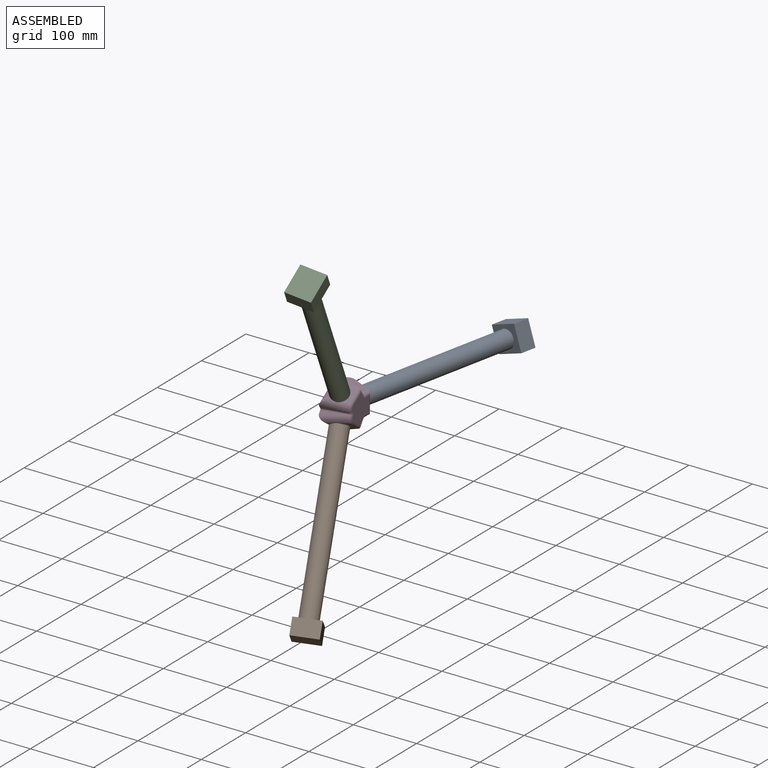
[diagram: assembled view]
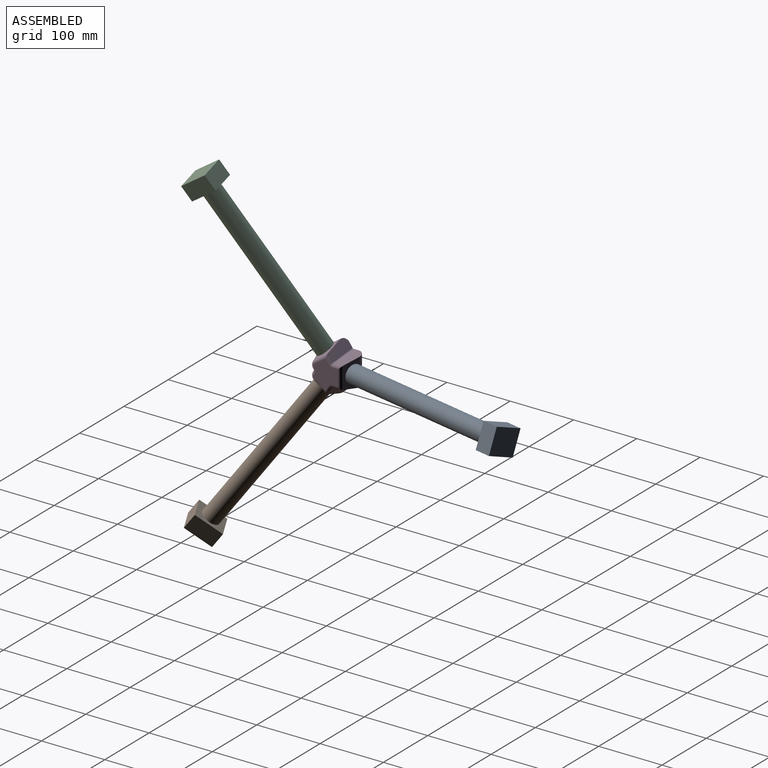
[diagram: assembled view, second angle]
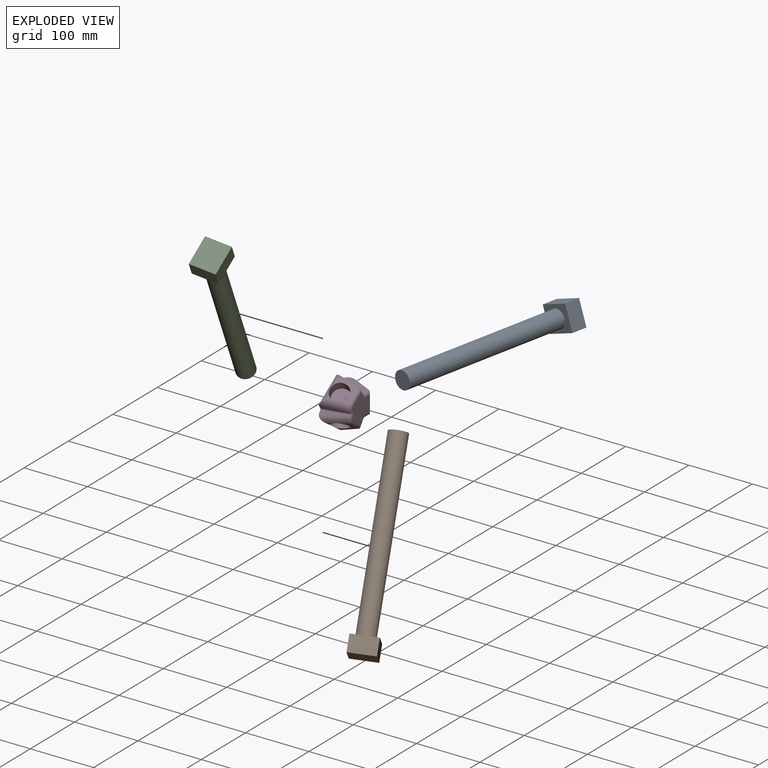
[diagram: exploded view]
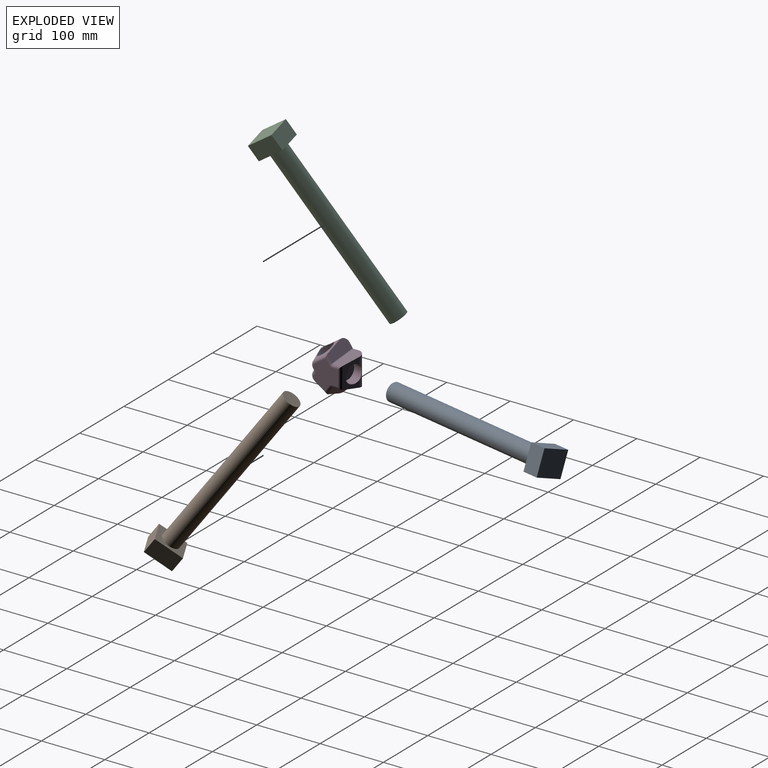
[diagram: exploded view, second angle]
ASSEMBLY  parts=4 mates=3
PART A: 8 faces, bbox 40x45x300 mm
  f0: cylinder r=14mm len=275mm, axis (0,0,-1), area 24190.3mm2, adj f1,f6
  f1: plane 28x28mm, normal (0,0,-1), area 615.8mm2, adj f0
  f2: plane 44.95x25mm, normal (1,0,0), area 1123.8mm2, adj f3,f5,f6,f7
  f3: plane 39.97x25mm, normal (0,1,0), area 999.2mm2, adj f2,f4,f6,f7
  f4: plane 44.95x25mm, normal (-1,0,0), area 1123.8mm2, adj f3,f5,f6,f7
  f5: plane 39.97x25mm, normal (0,-1,0), area 999.2mm2, adj f2,f4,f6,f7
  f6: plane 44.95x39.97mm, normal (0,0,-1), area 1180.9mm2, adj f0,f2,f3,f4,f5
  f7: plane 44.95x39.97mm, normal (0,0,1), area 1796.6mm2, adj f2,f3,f4,f5
PART B: same geometry as A
PART C: same geometry as A
PART D: 70 faces, bbox 79.5x43x70.3 mm
  f0: plane 1.05x0.76mm, normal (0.79,0.27,-0.54), area 0.5mm2, adj f34,f36,f66
  f1: plane 1.05x0.76mm, normal (-0.79,0.27,-0.54), area 0.5mm2, adj f38,f41,f64
  f2: plane 38.75x20.7mm, normal (0.56,0.17,0.81), area 645.5mm2, adj f14,f24,f26,f32,f57
  f3: plane 38.75x21.52mm, normal (-0.98,0.17,0), area 645.5mm2, adj f15,f19,f21,f31,f43
  f4: plane 38.75x20.7mm, normal (-0.56,0.17,0.81), area 645.5mm2, adj f15,f20,f22,f37,f47
  f5: plane 38.75x21.52mm, normal (0.98,0.17,0), area 645.5mm2, adj f14,f25,f27,f29,f52
  f6: plane 38.75x12.22mm, normal (0.56,0.17,-0.81), area 160.5mm2, adj f13,f18,f39,f41,f58
  f7: plane 38.75x12.22mm, normal (-0.56,0.17,-0.81), area 160.5mm2, adj f13,f16,f33,f36,f62
  f8: plane 26.67x22.78mm, normal (0.79,0.27,-0.54), area 316.4mm2, adj f24,f34,f36,f56,f61,f66
  f9: plane 43.52x26.63mm, normal (0,0.27,0.96), area 533.2mm2, adj f19,f25,f30,f42,f46,f49,f68
  f10: plane 26.63x22.75mm, normal (-0.79,0.27,-0.54), area 316.4mm2, adj f20,f38,f41,f48,f53,f64
  f11: plane 63x53.84mm, normal (0,-1,0), area 2132mm2, adj f16,f17,f18,f21,f22,f23,f26,f27
  f12: plane 45.29x38.01mm, normal (0,1,0), area 1139mm2, adj f43,f45,f46,f47,f52,f53,f54,f55
  f13: cylinder r=2mm len=39.07mm, axis (0,-0.98,-0.21), area 93.8mm2, adj f6,f7,f17,f60
  f14: cylinder r=2mm len=38.95mm, axis (0.17,-0.98,0.09), area 75.7mm2, adj f2,f5,f28,f54
  f15: cylinder r=2mm len=38.95mm, axis (-0.17,-0.98,0.09), area 75.7mm2, adj f3,f4,f23,f45
  f16: cylinder r=0.1mm len=3.33mm, axis (0.83,0,-0.56), area 0.7mm2, adj f7,f11,f17,f33
  f17: bspline ~2.33x0.44mm, area 0.4mm2, adj f11,f13,f16,f18
  f18: cylinder r=0.1mm len=3.33mm, axis (-0.83,0,-0.56), area 0.7mm2, adj f6,f11,f17,f39
  f19: cylinder r=0.1mm len=26.16mm, axis (0.17,0.95,-0.27), area 4.2mm2, adj f3,f9,f31,f42
  f20: cylinder r=0.1mm len=26.16mm, axis (0.32,0.95,0.01), area 4.2mm2, adj f4,f10,f37,f48
  f21: cylinder r=0.1mm len=8.01mm, axis (0,0,-1), area 1.4mm2, adj f3,f11,f23,f31
  f22: cylinder r=0.1mm len=6.67mm, axis (0.83,0,0.56), area 1.4mm2, adj f4,f11,f23,f37
  f23: bspline ~1.71x0.96mm, area 0.3mm2, adj f11,f15,f21,f22
  f24: cylinder r=0.1mm len=26.16mm, axis (-0.32,0.95,0.01), area 4.2mm2, adj f2,f8,f32,f56
  f25: cylinder r=0.1mm len=26.16mm, axis (-0.17,0.95,-0.27), area 4.2mm2, adj f5,f9,f29,f49
  f26: cylinder r=0.1mm len=6.67mm, axis (-0.83,0,0.56), area 1.4mm2, adj f2,f11,f28,f32
  f27: cylinder r=0.1mm len=8.01mm, axis (0,0,-1), area 1.4mm2, adj f5,f11,f28,f29
  f28: bspline ~1.71x0.96mm, area 0.3mm2, adj f11,f14,f26,f27
  f29: bspline ~14.24x10mm, area 3.1mm2, adj f5,f25,f27,f30
  f30: cylinder r=10mm len=47.96mm, axis (1,0,0), area 769mm2, adj f9,f11,f29,f31,f68
  f31: bspline ~14.24x11.74mm, area 3.1mm2, adj f3,f19,f21,f30
  f32: bspline ~12.74x7.35mm, area 3.1mm2, adj f2,f24,f26,f34
  f33: bspline ~5.07x3.36mm, area 0.6mm2, adj f7,f16,f34,f35
  f34: cylinder r=10mm len=45.24mm, axis (0.56,0,0.83), area 712mm2, adj f0,f8,f11,f32,f33,f35,f66
  f35: bspline ~12.64x12.44mm, area 0.5mm2, adj f33,f34,f36
  f36: cylinder r=10mm len=39.67mm, axis (-0.13,0.95,0.29), area 493.2mm2, adj f0,f7,f8,f35,f63,f66
  f37: bspline ~12.74x7.35mm, area 3.1mm2, adj f4,f20,f22,f38
  f38: cylinder r=10mm len=45.24mm, axis (-0.56,0,0.83), area 712mm2, adj f1,f10,f11,f37,f39,f40,f64
  f39: bspline ~5.07x3.36mm, area 0.6mm2, adj f6,f18,f38,f40
  f40: bspline ~12.64x12.44mm, area 0.5mm2, adj f38,f39,f41
  f41: cylinder r=10mm len=39.67mm, axis (0.13,0.95,0.29), area 493.2mm2, adj f1,f6,f10,f40,f55,f64
  f42: bspline ~1.7x0.56mm, area 0.1mm2, adj f9,f19,f43,f44
  f43: cylinder r=5mm len=13.72mm, axis (0,0,1), area 82.1mm2, adj f3,f12,f42,f44,f45
  f44: bspline ~4.94x4.94mm, area 0.4mm2, adj f42,f43,f46
  f45: bspline ~5.78x5.69mm, area 26.5mm2, adj f12,f15,f43,f47
  f46: cylinder r=5mm len=34.07mm, axis (-1,0,0), area 195.1mm2, adj f9,f12,f44,f50
  f47: cylinder r=5mm len=14.1mm, axis (-0.83,0,-0.56), area 82.1mm2, adj f4,f12,f45,f48,f51
  f48: bspline ~1.7x0.72mm, area 0.1mm2, adj f10,f20,f47,f51
  f49: bspline ~1.7x0.56mm, area 0.1mm2, adj f9,f25,f50,f52
  f50: bspline ~4.94x4.94mm, area 0.4mm2, adj f46,f49,f52
  f51: bspline ~6.86x4.19mm, area 0.4mm2, adj f47,f48,f53
  f52: cylinder r=5mm len=13.72mm, axis (0,0,1), area 82.1mm2, adj f5,f12,f49,f50,f54
  f53: cylinder r=5mm len=22.96mm, axis (0.56,0,-0.83), area 146mm2, adj f10,f12,f51,f55
  f54: bspline ~5.78x5.69mm, area 26.5mm2, adj f12,f14,f52,f57
  f55: bspline ~15.24x7.62mm, area 77.8mm2, adj f12,f41,f53,f58
  f56: bspline ~1.7x0.72mm, area 0.1mm2, adj f8,f24,f57,f59
  f57: cylinder r=5mm len=14.1mm, axis (0.83,0,-0.56), area 82.1mm2, adj f2,f12,f54,f56,f59
  f58: cylinder r=5mm len=4.59mm, axis (0.83,0,0.56), area 6.5mm2, adj f6,f12,f55,f60
  f59: bspline ~6.86x4.19mm, area 0.4mm2, adj f56,f57,f61
  f60: bspline ~7.78x5.27mm, area 32.7mm2, adj f12,f13,f58,f62
  f61: cylinder r=5mm len=22.96mm, axis (-0.56,0,-0.83), area 146mm2, adj f8,f12,f59,f63
  f62: cylinder r=5mm len=4.59mm, axis (-0.83,0,0.56), area 6.5mm2, adj f7,f12,f60,f63
  f63: bspline ~15.24x7.62mm, area 77.8mm2, adj f12,f36,f61,f62
  f64: cylinder r=14.1mm len=31.97mm, axis (0.81,-0.2,0.55), area 1268.8mm2, adj f1,f10,f38,f41,f65
  f65: plane 27.63x23.5mm, normal (-0.81,0.2,-0.55), area 624.6mm2, adj f64
  f66: cylinder r=14.1mm len=31.97mm, axis (-0.81,-0.2,0.55), area 1269.1mm2, adj f0,f8,f34,f36,f67
  f67: plane 27.63x23.5mm, normal (0.81,0.2,-0.55), area 624.6mm2, adj f66
  f68: cylinder r=14.1mm len=30.74mm, axis (0,-0.21,-0.98), area 1276.6mm2, adj f9,f30,f69
  f69: plane 28.2x27.6mm, normal (0,0.21,0.98), area 624.6mm2, adj f68
PLACE A rot(axis=(-0.49,-0.57,-0.66),140deg) t=(-43.38,0.86,21.15)mm
PLACE B rot(axis=(0.97,0.25,0.03),144.2deg) t=(-43.46,-22.12,9.01)mm
PLACE C rot(axis=(-0.1,0.29,-0.95),176.3deg) t=(-43.46,-22.12,33.28)mm
PLACE D rot(axis=(-0.58,-0.58,-0.58),120deg) t=(-46.46,-13.82,21.15)mm
MATE revolute C.f0 <-> D.f66  axis (0.2,-0.55,0.81) through (-43.46,-22.12,33.28)mm
MATE revolute B.f0 <-> D.f64  axis (0.2,-0.55,-0.81) through (-43.46,-22.12,9.01)mm
MATE revolute A.f0 <-> D.f68  axis (0.21,0.98,0) through (-43.38,0.86,21.15)mm
